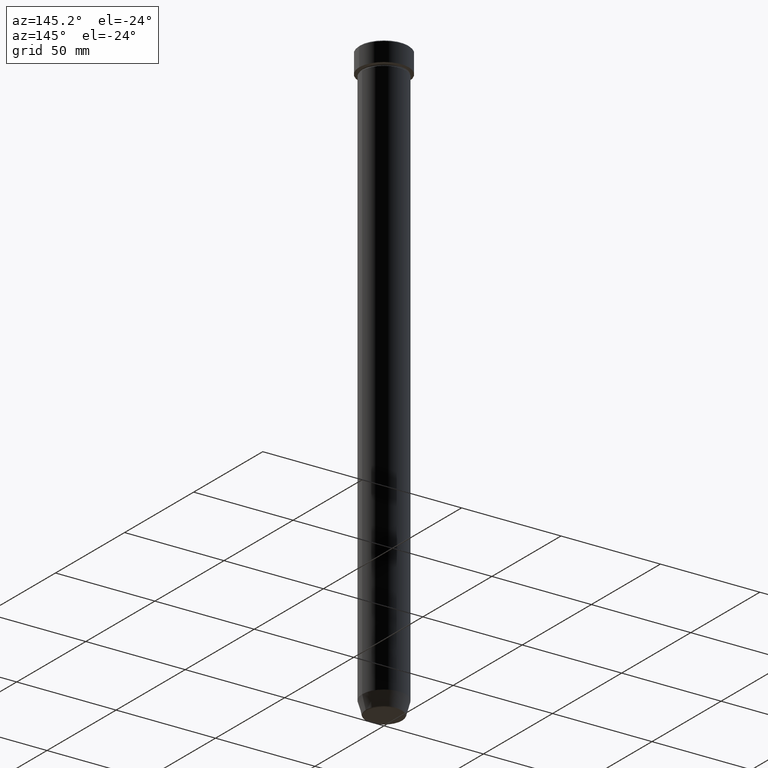
[diagram: clean part render]
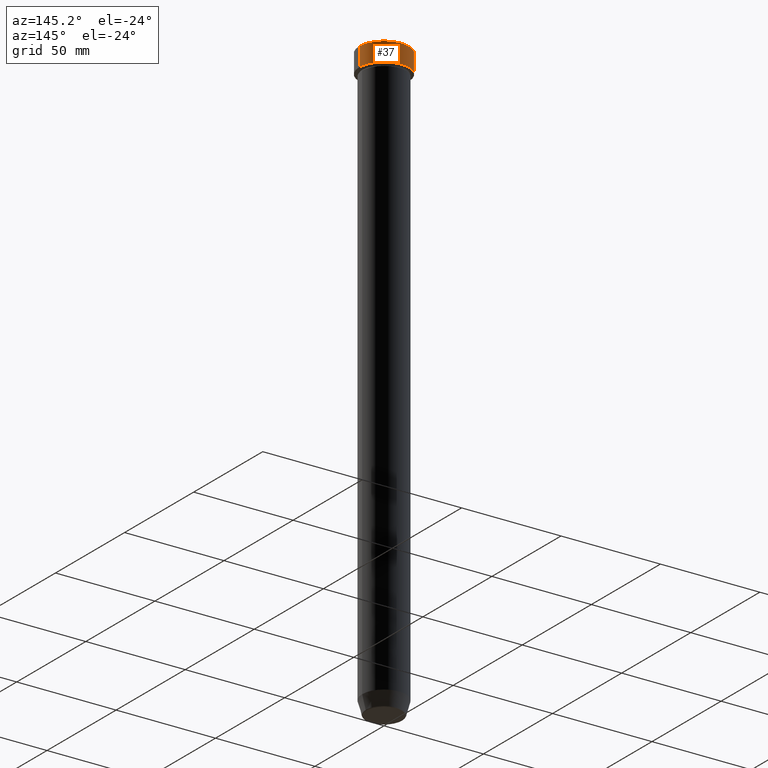
[diagram: same view with one face highlighted and labeled with its STEP entity id]
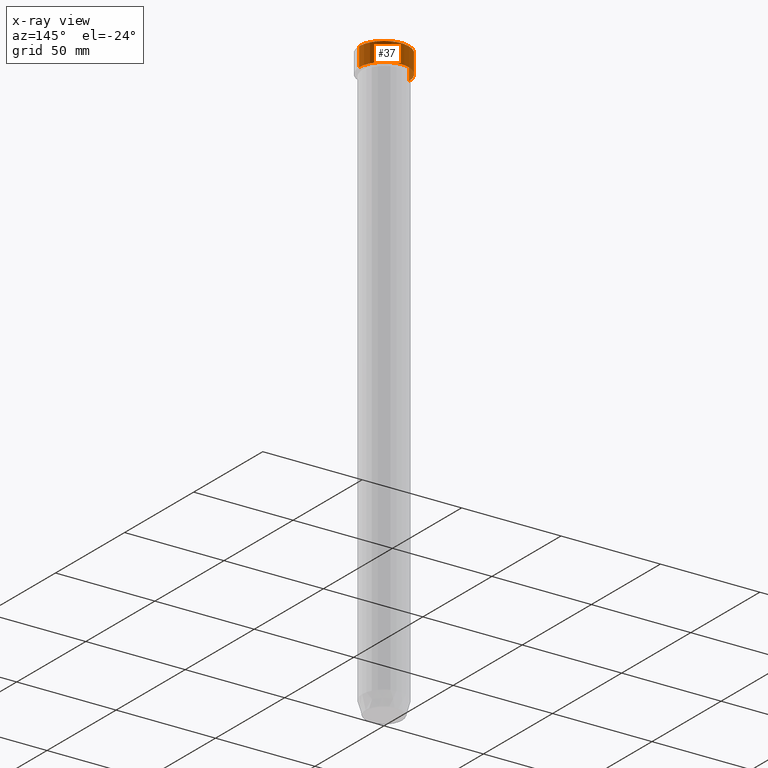
[diagram: x-ray of the same camera — body ghosted, the highlighted face saturated]
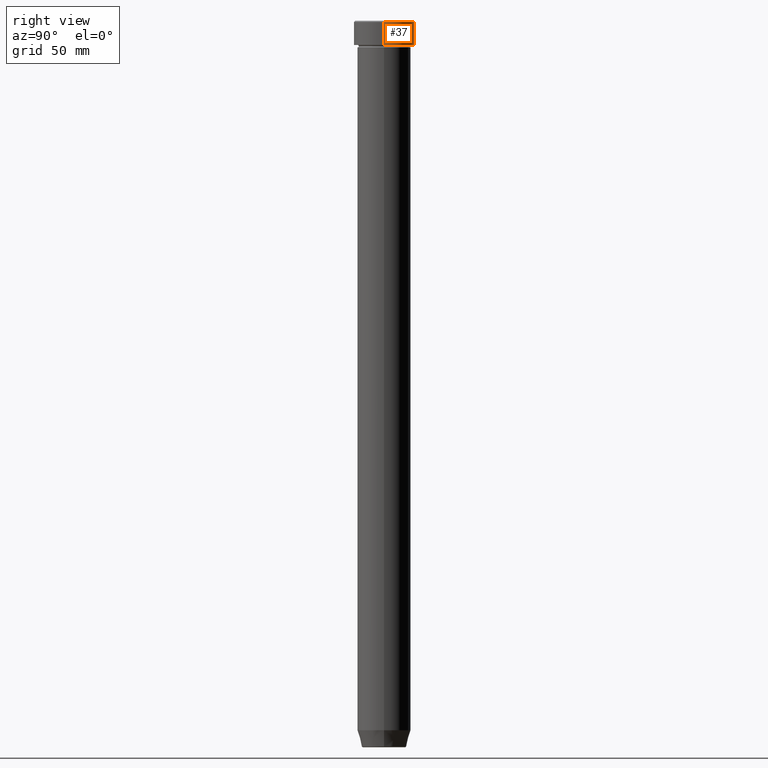
[diagram: same view with one face highlighted and labeled with its STEP entity id]
A machine part, auxiliary view. The second image highlights one B-rep face of the part: STEP entity #37.
The next image is the same camera in x-ray: the body ghosted, the highlighted face saturated — about 0% of this face is hidden behind the body in this view.
A second angle (right view) of the same face is appended — the face is thin or edge-on in the first view.
In plain terms, the highlighted cylindrical surface (edge-blend (fillet) strip) has radius 12.5 mm, axis along (-0, -0, 1).
Its self-contained STEP definition (entity closure, byte-faithful):
#5 = DIRECTION ( 'NONE',  ( 1.000000000000000000, 0.000000000000000000, 0.000000000000000000 ) ) ;
#19 = AXIS2_PLACEMENT_3D ( 'NONE', #68, #158, #329 ) ;
#35 = FACE_OUTER_BOUND ( 'NONE', #111, .T. ) ;
#37 = ADVANCED_FACE ( 'NONE', ( #35 ), #399, .T. ) ;
#55 = ORIENTED_EDGE ( 'NONE', *, *, #155, .T. ) ;
#57 = ORIENTED_EDGE ( 'NONE', *, *, #390, .T. ) ;
#58 = CIRCLE ( 'NONE', #19, 12.50000000000000000 ) ;
#68 = CARTESIAN_POINT ( 'NONE',  ( 0.000000000000000000, 0.000000000000000000, -10.00000000000000000 ) ) ;
#109 = AXIS2_PLACEMENT_3D ( 'NONE', #441, #398, #222 ) ;
#111 = EDGE_LOOP ( 'NONE', ( #570, #57, #55, #130 ) ) ;
#126 = CARTESIAN_POINT ( 'NONE',  ( -12.50000000000000000, 1.530808498934191521E-15, -0.4999999999999988343 ) ) ;
#128 = VERTEX_POINT ( 'NONE', #359 ) ;
#130 = ORIENTED_EDGE ( 'NONE', *, *, #337, .F. ) ;
#143 = VERTEX_POINT ( 'NONE', #126 ) ;
#147 = VERTEX_POINT ( 'NONE', #584 ) ;
#155 = EDGE_CURVE ( 'NONE', #143, #147, #564, .T. ) ;
#156 = DIRECTION ( 'NONE',  ( -0.000000000000000000, -0.000000000000000000, 1.000000000000000000 ) ) ;
#158 = DIRECTION ( 'NONE',  ( -0.000000000000000000, -0.000000000000000000, 1.000000000000000000 ) ) ;
#163 = AXIS2_PLACEMENT_3D ( 'NONE', #416, #228, #5 ) ;
#206 = CARTESIAN_POINT ( 'NONE',  ( 12.50000000000000000, 0.000000000000000000, 0.000000000000000000 ) ) ;
#222 = DIRECTION ( 'NONE',  ( 1.000000000000000000, 0.000000000000000000, 0.000000000000000000 ) ) ;
#228 = DIRECTION ( 'NONE',  ( -0.000000000000000000, -0.000000000000000000, 1.000000000000000000 ) ) ;
#242 = CARTESIAN_POINT ( 'NONE',  ( -12.50000000000000000, 1.530808498934191521E-15, 0.000000000000000000 ) ) ;
#323 = DIRECTION ( 'NONE',  ( -0.000000000000000000, -0.000000000000000000, 1.000000000000000000 ) ) ;
#329 = DIRECTION ( 'NONE',  ( 1.000000000000000000, 0.000000000000000000, 0.000000000000000000 ) ) ;
#330 = EDGE_CURVE ( 'NONE', #517, #128, #58, .T. ) ;
#337 = EDGE_CURVE ( 'NONE', #517, #147, #426, .T. ) ;
#359 = CARTESIAN_POINT ( 'NONE',  ( -12.50000000000000000, 1.530808498934191521E-15, -10.00000000000000000 ) ) ;
#390 = EDGE_CURVE ( 'NONE', #128, #143, #532, .T. ) ;
#397 = VECTOR ( 'NONE', #156, 1000.000000000000000 ) ;
#398 = DIRECTION ( 'NONE',  ( 0.000000000000000000, 0.000000000000000000, -1.000000000000000000 ) ) ;
#399 = CYLINDRICAL_SURFACE ( 'NONE', #163, 12.50000000000000000 ) ;
#416 = CARTESIAN_POINT ( 'NONE',  ( 0.000000000000000000, 0.000000000000000000, 0.000000000000000000 ) ) ;
#426 = LINE ( 'NONE', #206, #502 ) ;
#441 = CARTESIAN_POINT ( 'NONE',  ( 0.000000000000000000, 0.000000000000000000, -0.4999999999999988343 ) ) ;
#502 = VECTOR ( 'NONE', #323, 1000.000000000000000 ) ;
#517 = VERTEX_POINT ( 'NONE', #531 ) ;
#531 = CARTESIAN_POINT ( 'NONE',  ( 12.50000000000000000, 0.000000000000000000, -10.00000000000000000 ) ) ;
#532 = LINE ( 'NONE', #242, #397 ) ;
#564 = CIRCLE ( 'NONE', #109, 12.50000000000000000 ) ;
#570 = ORIENTED_EDGE ( 'NONE', *, *, #330, .T. ) ;
#584 = CARTESIAN_POINT ( 'NONE',  ( 12.50000000000000000, 0.000000000000000000, -0.4999999999999988343 ) ) ;